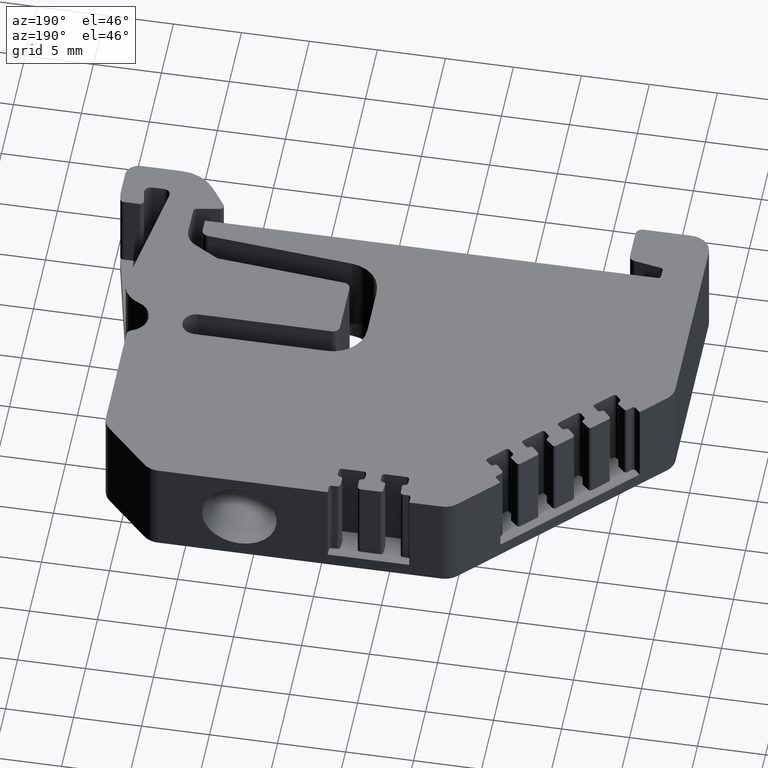
[diagram: clean part render]
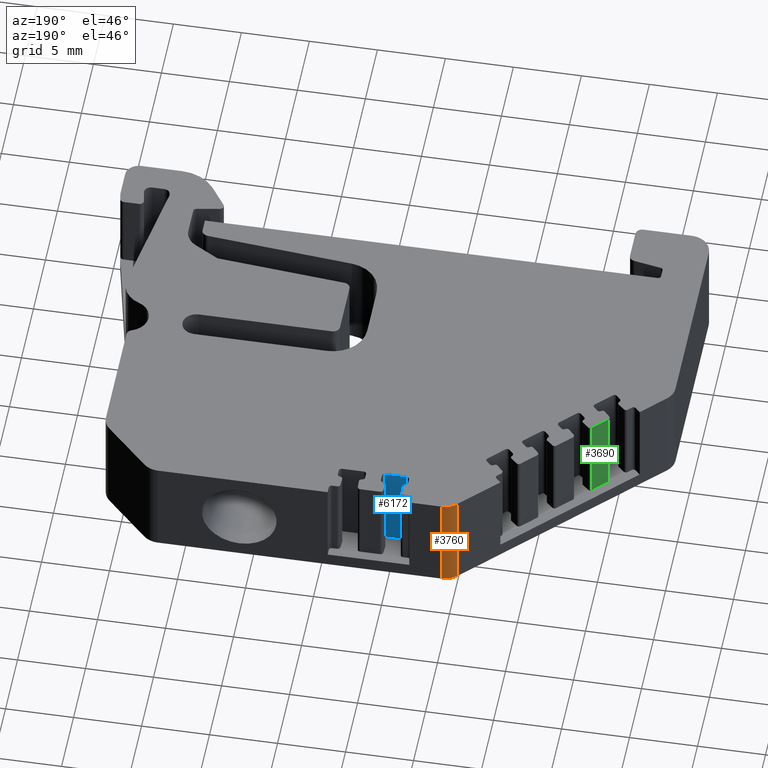
[diagram: same view with three faces highlighted in distinct colors, each labeled with its STEP entity id]
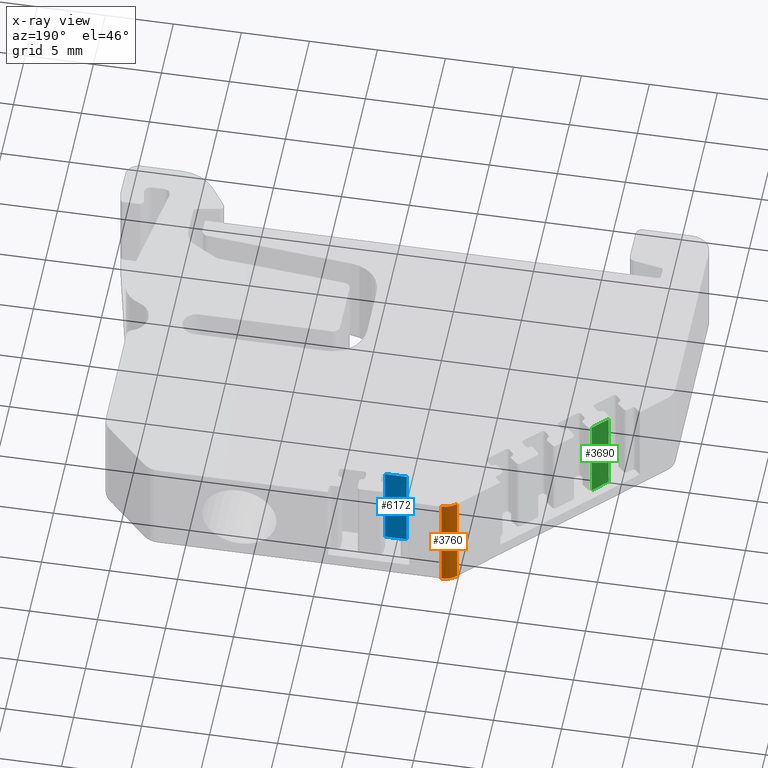
[diagram: x-ray of the same camera — body ghosted, the three highlighted faces saturated]
A machine part, auxiliary view with three faces highlighted in distinct colors.
The next image is the same camera in x-ray (body ghosted, the three faces saturated) — at least one of them is partly hidden behind the body in this view.
Their STEP definitions:

[orange] entity #3760 — the highlighted cylindrical surface (edge-blend (fillet) strip) has radius 1.5 mm, axis along (0, 0, 1).
#75 = EDGE_LOOP ( 'NONE', ( #323, #304, #332, #309 ) ) ;
#304 = ORIENTED_EDGE ( 'NONE', *, *, #5017, .T. ) ;
#309 = ORIENTED_EDGE ( 'NONE', *, *, #5037, .T. ) ;
#323 = ORIENTED_EDGE ( 'NONE', *, *, #5028, .T. ) ;
#332 = ORIENTED_EDGE ( 'NONE', *, *, #5032, .T. ) ;
#1569 = CARTESIAN_POINT ( 'NONE',  ( 4.984815662150161600, -3.076586903515269500, 3.703200940341488900E-012 ) ) ;
#1576 = CARTESIAN_POINT ( 'NONE',  ( 6.045475833928954900, -2.637247075295563900, 7.499999999996208400 ) ) ;
#1592 = CARTESIAN_POINT ( 'NONE',  ( 6.045475833928954900, -2.637247075295563900, 3.703157397815194900E-012 ) ) ;
#1663 = CARTESIAN_POINT ( 'NONE',  ( 4.984815662150145600, -3.076586903515256700, 7.499999999996208400 ) ) ;
#1865 = VERTEX_POINT ( 'NONE', #1592 ) ;
#1884 = VERTEX_POINT ( 'NONE', #1576 ) ;
#1914 = VERTEX_POINT ( 'NONE', #1569 ) ;
#1980 = VERTEX_POINT ( 'NONE', #1663 ) ;
#2582 = AXIS2_PLACEMENT_3D ( 'NONE', #4744, #4725, #4755 ) ;
#2837 = AXIS2_PLACEMENT_3D ( 'NONE', #5688, #5668, #5673 ) ;
#2843 = VECTOR ( 'NONE', #5623, 1000.000000000000000 ) ;
#2848 = CIRCLE ( 'NONE', #2837, 1.499999999998499900 ) ;
#2871 = AXIS2_PLACEMENT_3D ( 'NONE', #5680, #5653, #5683 ) ;
#2874 = VECTOR ( 'NONE', #5655, 1000.000000000000000 ) ;
#2892 = CIRCLE ( 'NONE', #2871, 1.499999999998499900 ) ;
#3760 = ADVANCED_FACE ( 'NONE', ( #4724 ), #4741, .T. ) ;
#4724 = FACE_OUTER_BOUND ( 'NONE', #75, .T. ) ;
#4725 = DIRECTION ( 'NONE',  ( 0.0000000000000000000, 0.0000000000000000000, 1.000000000000000000 ) ) ;
#4741 = CYLINDRICAL_SURFACE ( 'NONE', #2582, 1.499999999998499900 ) ;
#4744 = CARTESIAN_POINT ( 'NONE',  ( 6.045475833928954000, -4.137247075294062900, 3.749999999999953800 ) ) ;
#4755 = DIRECTION ( 'NONE',  ( 1.000000000000000000, 0.0000000000000000000, 0.0000000000000000000 ) ) ;
#5017 = EDGE_CURVE ( 'NONE', #1914, #1980, #5643, .T. ) ;
#5028 = EDGE_CURVE ( 'NONE', #1865, #1914, #2892, .T. ) ;
#5032 = EDGE_CURVE ( 'NONE', #1980, #1884, #2848, .T. ) ;
#5037 = EDGE_CURVE ( 'NONE', #1884, #1865, #5696, .T. ) ;
#5623 = DIRECTION ( 'NONE',  ( -0.0000000000000000000, 0.0000000000000000000, 1.000000000000000000 ) ) ;
#5629 = CARTESIAN_POINT ( 'NONE',  ( 4.984815662150150900, -3.076586903515253100, 3.703026770236314500E-012 ) ) ;
#5643 = LINE ( 'NONE', #5629, #2843 ) ;
#5652 = CARTESIAN_POINT ( 'NONE',  ( 6.045475833928954900, -2.637247075295563900, 3.749999999999953800 ) ) ;
#5653 = DIRECTION ( 'NONE',  ( 0.0000000000000000000, 0.0000000000000000000, 1.000000000000000000 ) ) ;
#5655 = DIRECTION ( 'NONE',  ( 0.0000000000000000000, -0.0000000000000000000, -1.000000000000000000 ) ) ;
#5668 = DIRECTION ( 'NONE',  ( -0.0000000000000000000, -0.0000000000000000000, -1.000000000000000000 ) ) ;
#5673 = DIRECTION ( 'NONE',  ( 1.000000000000000000, 2.891205793297569800E-015, 0.0000000000000000000 ) ) ;
#5680 = CARTESIAN_POINT ( 'NONE',  ( 6.045475833928954000, -4.137247075294062900, 3.703200940341488900E-012 ) ) ;
#5683 = DIRECTION ( 'NONE',  ( 1.000000000000000000, 0.0000000000000000000, 0.0000000000000000000 ) ) ;
#5688 = CARTESIAN_POINT ( 'NONE',  ( 6.045475833928954000, -4.137247075294062900, 7.499999999996208400 ) ) ;
#5696 = LINE ( 'NONE', #5652, #2874 ) ;

[blue] entity #6172 — the highlighted planar face has unit normal (0, -1, 0).
#21 = EDGE_CURVE ( 'NONE', #982, #970, #1343, .T. ) ;
#186 = EDGE_LOOP ( 'NONE', ( #2217, #2174, #2205, #2220 ) ) ;
#956 = VERTEX_POINT ( 'NONE', #1436 ) ;
#958 = VERTEX_POINT ( 'NONE', #1463 ) ;
#970 = VERTEX_POINT ( 'NONE', #1555 ) ;
#982 = VERTEX_POINT ( 'NONE', #1537 ) ;
#1315 = DIRECTION ( 'NONE',  ( 1.000000000000000000, 0.0000000000000000000, 0.0000000000000000000 ) ) ;
#1317 = CARTESIAN_POINT ( 'NONE',  ( 9.044119008242088100, -5.137247022818982600, 1.000000000002703600 ) ) ;
#1343 = LINE ( 'NONE', #1317, #2268 ) ;
#1436 = CARTESIAN_POINT ( 'NONE',  ( 10.64411900824049400, -5.137247022818983500, 7.499999999996208400 ) ) ;
#1463 = CARTESIAN_POINT ( 'NONE',  ( 9.044119008242088100, -5.137247022818985300, 7.499999999996208400 ) ) ;
#1537 = CARTESIAN_POINT ( 'NONE',  ( 9.044119008242088100, -5.137247022818985300, 1.000000000002703600 ) ) ;
#1555 = CARTESIAN_POINT ( 'NONE',  ( 10.64411900824049400, -5.137247022818982600, 1.000000000002703600 ) ) ;
#2174 = ORIENTED_EDGE ( 'NONE', *, *, #6224, .T. ) ;
#2205 = ORIENTED_EDGE ( 'NONE', *, *, #6203, .F. ) ;
#2217 = ORIENTED_EDGE ( 'NONE', *, *, #21, .F. ) ;
#2220 = ORIENTED_EDGE ( 'NONE', *, *, #6170, .F. ) ;
#2268 = VECTOR ( 'NONE', #1315, 1000.000000000000000 ) ;
#3034 = VECTOR ( 'NONE', #5331, 1000.000000000000000 ) ;
#3079 = AXIS2_PLACEMENT_3D ( 'NONE', #5327, #5311, #5324 ) ;
#3094 = VECTOR ( 'NONE', #5420, 1000.000000000000000 ) ;
#3130 = VECTOR ( 'NONE', #5181, 1000.000000000000000 ) ;
#5179 = LINE ( 'NONE', #5180, #3130 ) ;
#5180 = CARTESIAN_POINT ( 'NONE',  ( 9.044119008242088100, -5.137247022818987000, 1.000000000002703600 ) ) ;
#5181 = DIRECTION ( 'NONE',  ( 0.0000000000000000000, 0.0000000000000000000, 1.000000000000000000 ) ) ;
#5297 = LINE ( 'NONE', #5323, #3034 ) ;
#5304 = PLANE ( 'NONE',  #3079 ) ;
#5308 = FACE_OUTER_BOUND ( 'NONE', #186, .T. ) ;
#5311 = DIRECTION ( 'NONE',  ( 0.0000000000000000000, -1.000000000000000000, 0.0000000000000000000 ) ) ;
#5323 = CARTESIAN_POINT ( 'NONE',  ( 10.64411900824049400, -5.137247022818982600, 1.000000000002703600 ) ) ;
#5324 = DIRECTION ( 'NONE',  ( 0.0000000000000000000, -0.0000000000000000000, -1.000000000000000000 ) ) ;
#5327 = CARTESIAN_POINT ( 'NONE',  ( 9.044119008242088100, -5.137247022818982600, 1.000000000002703600 ) ) ;
#5331 = DIRECTION ( 'NONE',  ( -0.0000000000000000000, 0.0000000000000000000, 1.000000000000000000 ) ) ;
#5420 = DIRECTION ( 'NONE',  ( -1.000000000000000000, 0.0000000000000000000, -0.0000000000000000000 ) ) ;
#5438 = CARTESIAN_POINT ( 'NONE',  ( 16.92415554634213500, -5.137247022818983500, 7.499999999996208400 ) ) ;
#5447 = LINE ( 'NONE', #5438, #3094 ) ;
#6170 = EDGE_CURVE ( 'NONE', #970, #956, #5297, .T. ) ;
#6172 = ADVANCED_FACE ( 'NONE', ( #5308 ), #5304, .F. ) ;
#6203 = EDGE_CURVE ( 'NONE', #956, #958, #5447, .T. ) ;
#6224 = EDGE_CURVE ( 'NONE', #982, #958, #5179, .T. ) ;

[green] entity #3690 — the highlighted planar face has unit normal (0.7071, -0.7071, 0).
#19 = EDGE_CURVE ( 'NONE', #918, #932, #1318, .T. ) ;
#125 = EDGE_LOOP ( 'NONE', ( #2062, #2054, #2046, #2105 ) ) ;
#873 = VERTEX_POINT ( 'NONE', #1371 ) ;
#918 = VERTEX_POINT ( 'NONE', #1466 ) ;
#922 = VERTEX_POINT ( 'NONE', #1458 ) ;
#932 = VERTEX_POINT ( 'NONE', #1487 ) ;
#1309 = DIRECTION ( 'NONE',  ( -0.7071067811865404700, -0.7071067811865545700, -0.0000000000000000000 ) ) ;
#1318 = LINE ( 'NONE', #1362, #2265 ) ;
#1362 = CARTESIAN_POINT ( 'NONE',  ( -4.338573445726392000, -13.38992774487321700, 7.499999999996208400 ) ) ;
#1371 = CARTESIAN_POINT ( 'NONE',  ( -4.338573445726398200, -13.38992774487322500, 1.000000000002703600 ) ) ;
#1458 = CARTESIAN_POINT ( 'NONE',  ( -3.294073152598783400, -12.34542745174556600, 1.000000000002703600 ) ) ;
#1466 = CARTESIAN_POINT ( 'NONE',  ( -3.294073152598778100, -12.34542745174557000, 7.499999999996208400 ) ) ;
#1487 = CARTESIAN_POINT ( 'NONE',  ( -4.338573445726388500, -13.38992774487323700, 7.499999999996208400 ) ) ;
#2046 = ORIENTED_EDGE ( 'NONE', *, *, #19, .F. ) ;
#2054 = ORIENTED_EDGE ( 'NONE', *, *, #5887, .F. ) ;
#2062 = ORIENTED_EDGE ( 'NONE', *, *, #5910, .F. ) ;
#2105 = ORIENTED_EDGE ( 'NONE', *, *, #5939, .F. ) ;
#2265 = VECTOR ( 'NONE', #1309, 1000.000000000000000 ) ;
#2521 = AXIS2_PLACEMENT_3D ( 'NONE', #4501, #4475, #4513 ) ;
#2928 = VECTOR ( 'NONE', #3510, 1000.000000000000000 ) ;
#2988 = VECTOR ( 'NONE', #3617, 1000.000000000000100 ) ;
#3045 = VECTOR ( 'NONE', #5243, 1000.000000000000000 ) ;
#3510 = DIRECTION ( 'NONE',  ( -0.0000000000000000000, -0.0000000000000000000, -1.000000000000000000 ) ) ;
#3522 = LINE ( 'NONE', #3528, #2928 ) ;
#3528 = CARTESIAN_POINT ( 'NONE',  ( -4.338573445726369800, -13.38992774487324100, 1.000000000002703600 ) ) ;
#3593 = LINE ( 'NONE', #3620, #2988 ) ;
#3617 = DIRECTION ( 'NONE',  ( 0.7071067811865474600, 0.7071067811865474600, 0.0000000000000000000 ) ) ;
#3620 = CARTESIAN_POINT ( 'NONE',  ( -4.338573445726401800, -13.38992774487318400, 1.000000000002703600 ) ) ;
#3690 = ADVANCED_FACE ( 'NONE', ( #4510 ), #4493, .F. ) ;
#4475 = DIRECTION ( 'NONE',  ( 0.7071067811865475700, -0.7071067811865475700, 0.0000000000000000000 ) ) ;
#4493 = PLANE ( 'NONE',  #2521 ) ;
#4501 = CARTESIAN_POINT ( 'NONE',  ( -4.338573445726401800, -13.38992774487318400, 1.000000000002703600 ) ) ;
#4510 = FACE_OUTER_BOUND ( 'NONE', #125, .T. ) ;
#4513 = DIRECTION ( 'NONE',  ( 0.7071067811865474600, 0.7071067811865474600, 0.0000000000000000000 ) ) ;
#5233 = LINE ( 'NONE', #5241, #3045 ) ;
#5241 = CARTESIAN_POINT ( 'NONE',  ( -3.294073152598779900, -12.34542745174556300, 1.000000000002703600 ) ) ;
#5243 = DIRECTION ( 'NONE',  ( -0.0000000000000000000, 0.0000000000000000000, 1.000000000000000000 ) ) ;
#5887 = EDGE_CURVE ( 'NONE', #932, #873, #3522, .T. ) ;
#5910 = EDGE_CURVE ( 'NONE', #873, #922, #3593, .T. ) ;
#5939 = EDGE_CURVE ( 'NONE', #922, #918, #5233, .T. ) ;